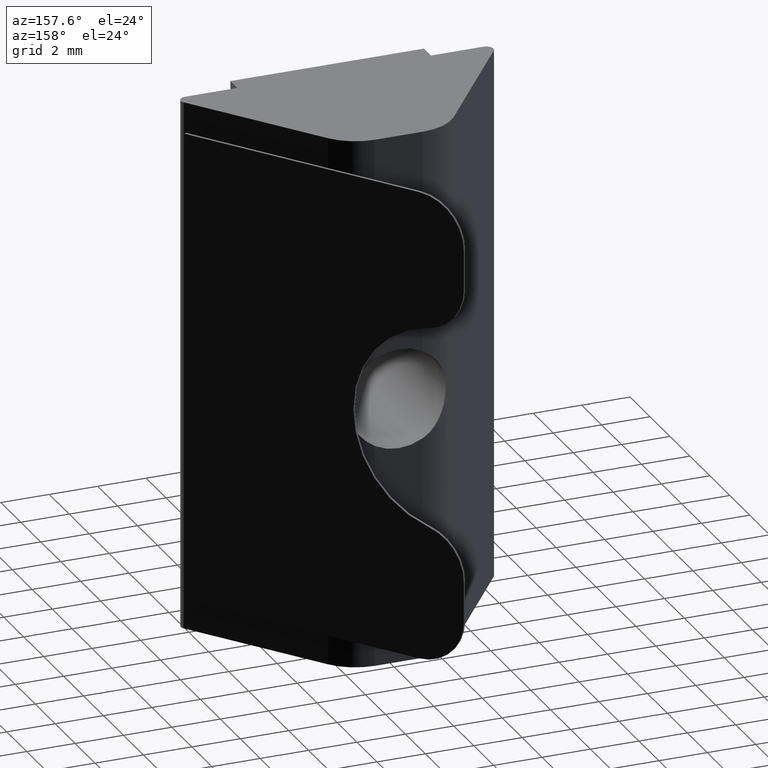
[diagram: clean part render]
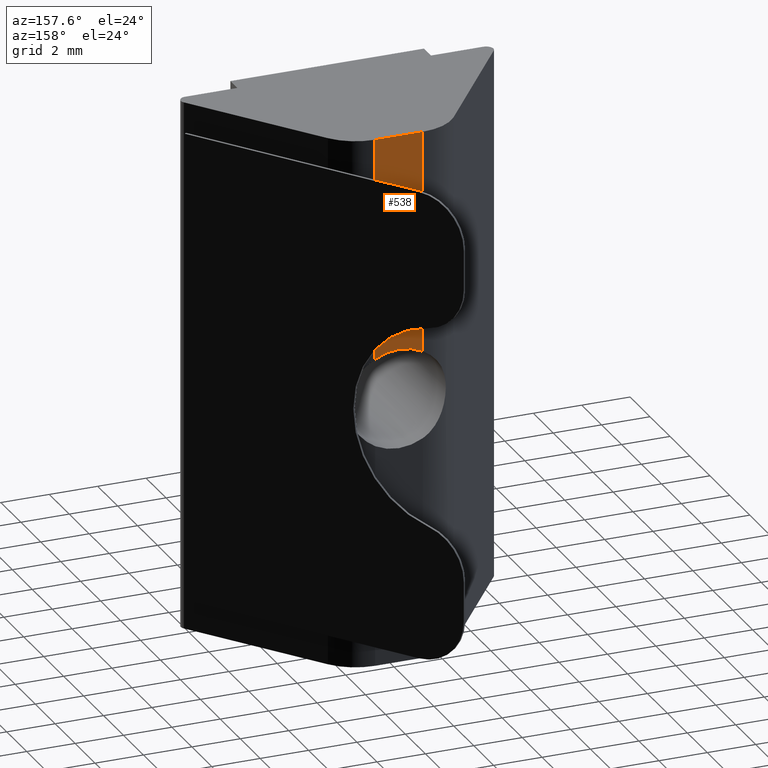
[diagram: same view with one face highlighted and labeled with its STEP entity id]
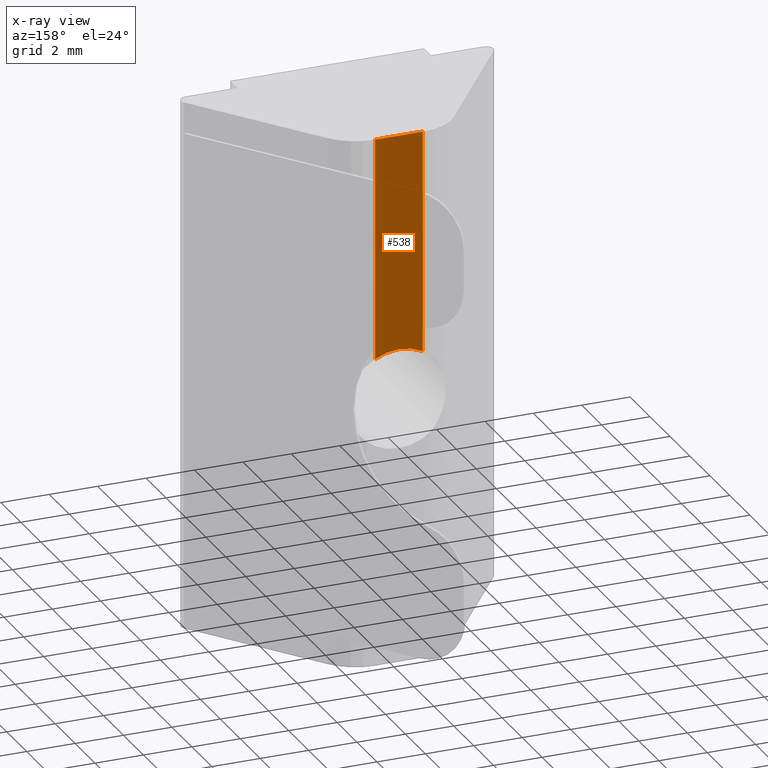
[diagram: x-ray of the same camera — body ghosted, the highlighted face saturated]
A machine part, auxiliary view. The second image highlights one B-rep face of the part: STEP entity #538.
The next image is the same camera in x-ray: the body ghosted, the highlighted face saturated — about 2% of this face is hidden behind the body in this view.
In plain terms, the highlighted planar face has unit normal (0, 1, 0).
Its self-contained STEP definition (entity closure, byte-faithful):
#31=PLANE('',#589);
#59=FACE_OUTER_BOUND('',#88,.T.);
#88=EDGE_LOOP('',(#481,#482,#483,#484));
#135=LINE('',#867,#189);
#141=LINE('',#880,#195);
#144=LINE('',#924,#198);
#189=VECTOR('',#707,1.96884855750627);
#195=VECTOR('',#717,9.18247480364057);
#198=VECTOR('',#722,9.18247480364057);
#222=CIRCLE('',#587,2.067);
#264=VERTEX_POINT('',#864);
#265=VERTEX_POINT('',#866);
#270=VERTEX_POINT('',#879);
#273=VERTEX_POINT('',#905);
#332=EDGE_CURVE('',#264,#265,#135,.T.);
#339=EDGE_CURVE('',#265,#270,#141,.T.);
#344=EDGE_CURVE('',#273,#264,#144,.T.);
#346=EDGE_CURVE('',#273,#270,#222,.T.);
#481=ORIENTED_EDGE('',*,*,#339,.F.);
#482=ORIENTED_EDGE('',*,*,#332,.F.);
#483=ORIENTED_EDGE('',*,*,#344,.F.);
#484=ORIENTED_EDGE('',*,*,#346,.T.);
#538=ADVANCED_FACE('',(#59),#31,.T.);
#587=AXIS2_PLACEMENT_3D('',#928,#729,#730);
#589=AXIS2_PLACEMENT_3D('',#931,#733,#734);
#707=DIRECTION('',(-1.,0.,0.));
#717=DIRECTION('',(0.,0.,-1.));
#722=DIRECTION('',(0.,0.,1.));
#729=DIRECTION('center_axis',(0.,-1.,0.));
#730=DIRECTION('ref_axis',(1.,0.,0.));
#733=DIRECTION('center_axis',(0.,1.,0.));
#734=DIRECTION('ref_axis',(-1.,0.,0.));
#864=CARTESIAN_POINT('',(0.984424278753135,6.5,22.));
#866=CARTESIAN_POINT('',(-0.984424278753134,6.5,22.));
#867=CARTESIAN_POINT('',(2.,6.5,22.));
#879=CARTESIAN_POINT('',(-0.984424278753134,6.5,12.8175251963594));
#880=CARTESIAN_POINT('',(-0.984424278753134,6.5,0.));
#905=CARTESIAN_POINT('',(0.984424278753135,6.5,12.8175251963594));
#924=CARTESIAN_POINT('',(0.984424278753135,6.5,0.));
#928=CARTESIAN_POINT('Origin',(0.,6.5,11.));
#931=CARTESIAN_POINT('Origin',(2.,6.5,0.));